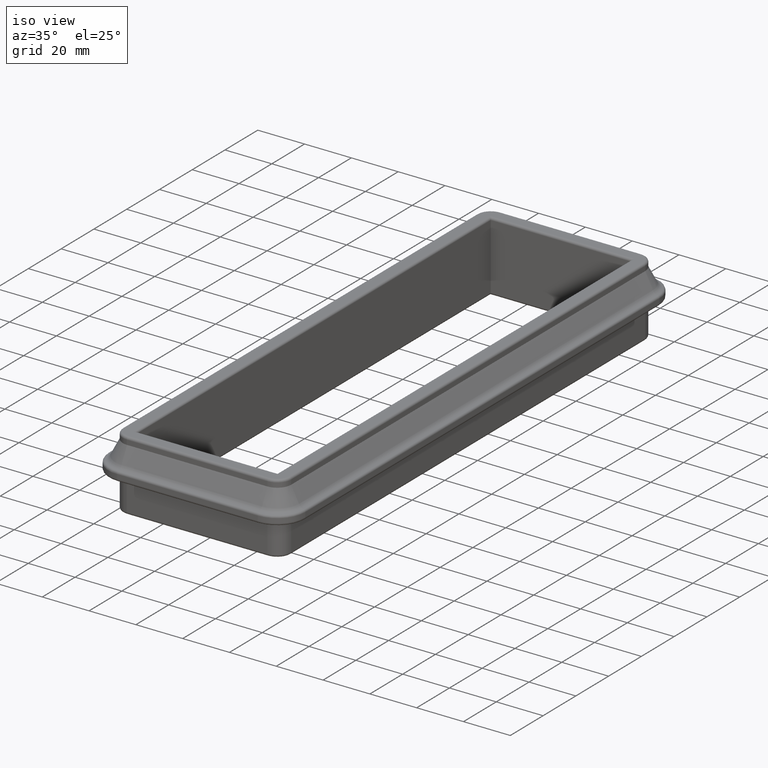
[diagram: clean part render]
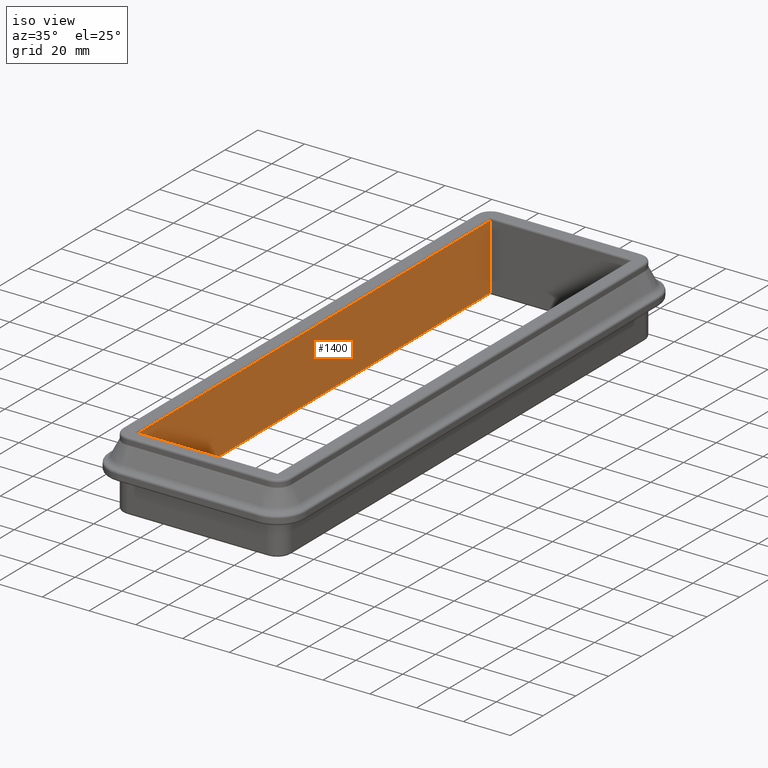
[diagram: same view with one face highlighted and labeled with its STEP entity id]
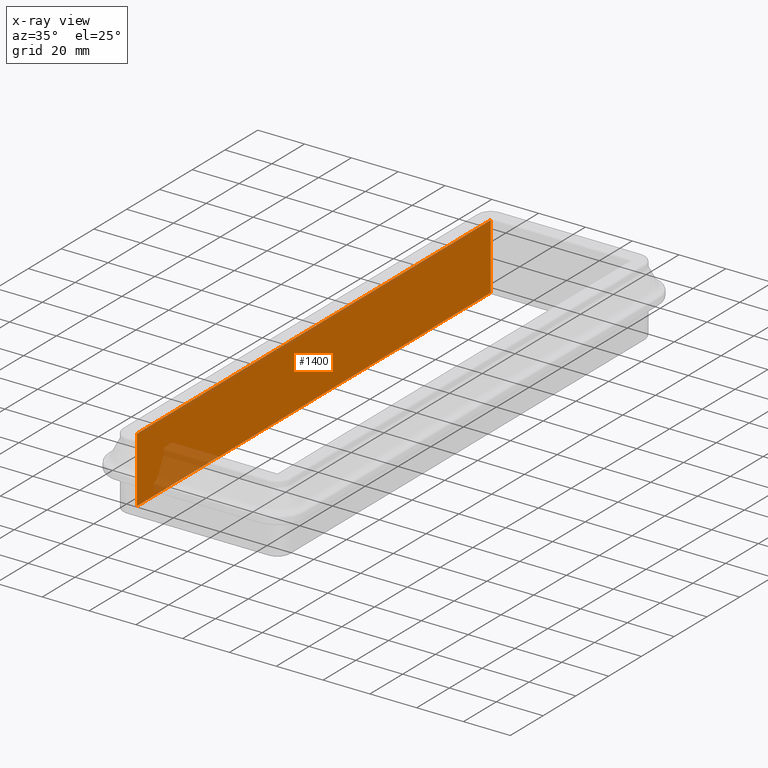
[diagram: x-ray of the same camera — body ghosted, the highlighted face saturated]
A machine part, iso view. The second image highlights one B-rep face of the part: STEP entity #1400.
The next image is the same camera in x-ray: the body ghosted, the highlighted face saturated — about 6% of this face is hidden behind the body in this view.
In plain terms, the highlighted planar face has unit normal (1, 0, -0).
Its self-contained STEP definition (entity closure, byte-faithful):
#39=PLANE('',#1600);
#143=FACE_OUTER_BOUND('',#240,.T.);
#240=EDGE_LOOP('',(#1166,#1167,#1168,#1169));
#338=LINE('',#2450,#438);
#342=LINE('',#2465,#442);
#345=LINE('',#2471,#445);
#346=LINE('',#2472,#446);
#438=VECTOR('',#2004,10.);
#442=VECTOR('',#2024,10.);
#445=VECTOR('',#2029,10.);
#446=VECTOR('',#2030,10.);
#654=VERTEX_POINT('',#2448);
#655=VERTEX_POINT('',#2449);
#658=VERTEX_POINT('',#2464);
#660=VERTEX_POINT('',#2470);
#827=EDGE_CURVE('',#654,#655,#338,.T.);
#835=EDGE_CURVE('',#655,#658,#342,.T.);
#838=EDGE_CURVE('',#654,#660,#345,.T.);
#839=EDGE_CURVE('',#658,#660,#346,.T.);
#1166=ORIENTED_EDGE('',*,*,#827,.F.);
#1167=ORIENTED_EDGE('',*,*,#838,.T.);
#1168=ORIENTED_EDGE('',*,*,#839,.F.);
#1169=ORIENTED_EDGE('',*,*,#835,.F.);
#1400=ADVANCED_FACE('',(#143),#39,.T.);
#1600=AXIS2_PLACEMENT_3D('',#2469,#2027,#2028);
#2004=DIRECTION('',(-3.08395284618099E-16,1.,0.));
#2024=DIRECTION('',(-2.96059473233375E-16,0.,-1.));
#2027=DIRECTION('center_axis',(1.,3.08395284618099E-16,-2.96059473233375E-16));
#2028=DIRECTION('ref_axis',(-2.96059473233375E-16,0.,-1.));
#2029=DIRECTION('',(-2.96059473233375E-16,0.,-1.));
#2030=DIRECTION('',(3.08395284618099E-16,-1.,0.));
#2448=CARTESIAN_POINT('',(-29.9999999999999,-108.,14.));
#2449=CARTESIAN_POINT('',(-30.,108.,14.));
#2450=CARTESIAN_POINT('',(-30.,1.88429518901659E-14,14.));
#2464=CARTESIAN_POINT('',(-30.,108.,-14.));
#2465=CARTESIAN_POINT('',(-30.,108.,15.));
#2469=CARTESIAN_POINT('Origin',(-29.9999999999999,-108.,15.));
#2470=CARTESIAN_POINT('',(-29.9999999999999,-108.,-14.));
#2471=CARTESIAN_POINT('',(-29.9999999999999,-108.,15.));
#2472=CARTESIAN_POINT('',(-30.,1.79177660363116E-14,-14.));